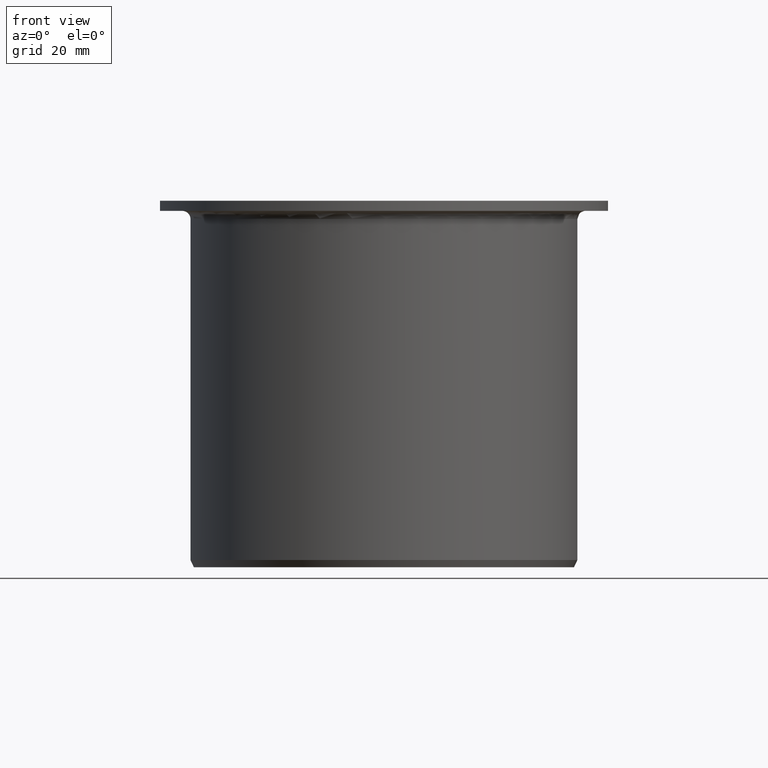
[diagram: clean part render]
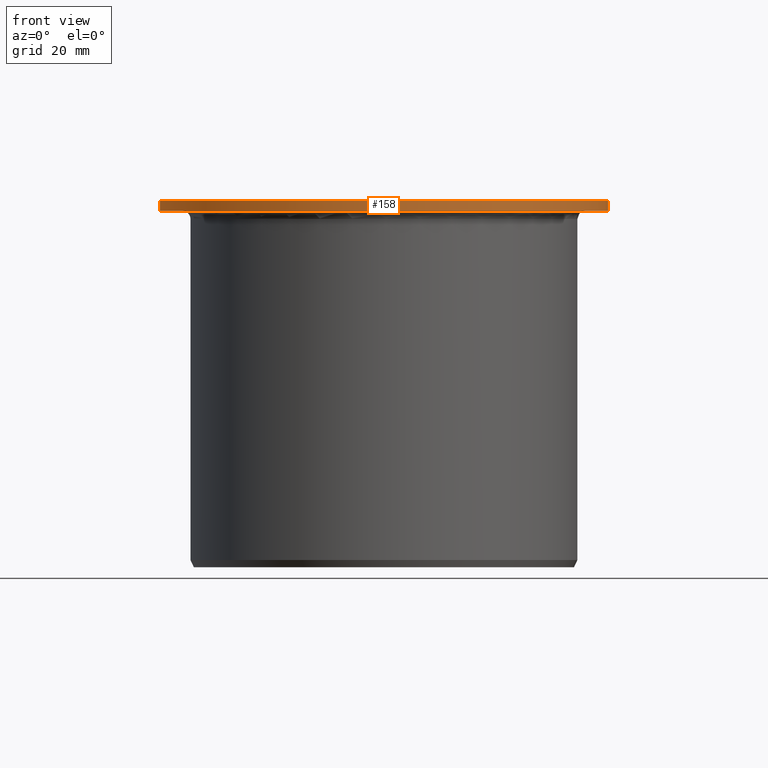
[diagram: same view with one face highlighted and labeled with its STEP entity id]
A machine part, front view. The second image highlights one B-rep face of the part: STEP entity #158.
In plain terms, the highlighted cylindrical surface (partial cylindrical patch) has radius 55 mm, axis along (-0, 0, -1).
Its self-contained STEP definition (entity closure, byte-faithful):
#158=ADVANCED_FACE('',(#177),#178,.T.);
#177=FACE_OUTER_BOUND('',#202,.T.);
#178=CYLINDRICAL_SURFACE('',#203,0.055);
#202=EDGE_LOOP('',(#257,#258,#259,#260));
#203=AXIS2_PLACEMENT_3D('',#261,#262,#263);
#257=ORIENTED_EDGE('',*,*,#333,.T.);
#258=ORIENTED_EDGE('',*,*,#334,.T.);
#259=ORIENTED_EDGE('',*,*,#331,.F.);
#260=ORIENTED_EDGE('',*,*,#314,.F.);
#261=CARTESIAN_POINT('',(0.0,0.0,0.0));
#262=DIRECTION('',(0.0,-6.12323399573677E-017,-1.0));
#263=DIRECTION('',(0.0,1.0,-6.12323399573677E-017));
#314=EDGE_CURVE('',#345,#347,#348,.T.);
#331=EDGE_CURVE('',#347,#377,#378,.T.);
#333=EDGE_CURVE('',#345,#380,#381,.T.);
#334=EDGE_CURVE('',#380,#377,#382,.T.);
#345=VERTEX_POINT('',#412);
#347=VERTEX_POINT('',#415);
#348=LINE('',#416,#417);
#377=VERTEX_POINT('',#506);
#378=CIRCLE('',#507,0.055);
#380=VERTEX_POINT('',#510);
#381=CIRCLE('',#511,0.055);
#382=LINE('',#512,#513);
#412=CARTESIAN_POINT('',(0.054956128321563,-0.0021963514982584,0.09));
#415=CARTESIAN_POINT('',(0.054956128321563,-0.0021963514982584,0.0875));
#416=CARTESIAN_POINT('',(0.054956128321563,-0.0021963514982584,1.52775257809574E-019));
#417=VECTOR('',#531,1.0);
#506=CARTESIAN_POINT('',(0.054956128321563,0.00219635149825841,0.0875));
#507=AXIS2_PLACEMENT_3D('',#554,#555,#556);
#510=CARTESIAN_POINT('',(0.054956128321563,0.00219635149825841,0.09));
#511=AXIS2_PLACEMENT_3D('',#558,#559,#560);
#512=CARTESIAN_POINT('',(0.054956128321563,0.00219635149825841,-1.8002801656482E-019));
#513=VECTOR('',#561,1.0);
#531=DIRECTION('',(0.0,-6.12323399573677E-017,-1.0));
#554=CARTESIAN_POINT('',(0.0,6.93889390390723E-018,0.0875));
#555=DIRECTION('',(0.0,-6.12323399573677E-017,-1.0));
#556=DIRECTION('',(0.0,1.0,-6.12323399573677E-017));
#558=CARTESIAN_POINT('',(0.0,6.93889390390723E-018,0.09));
#559=DIRECTION('',(0.0,-6.12323399573677E-017,-1.0));
#560=DIRECTION('',(0.0,1.0,-6.12323399573677E-017));
#561=DIRECTION('',(0.0,-6.12323399573677E-017,-1.0));